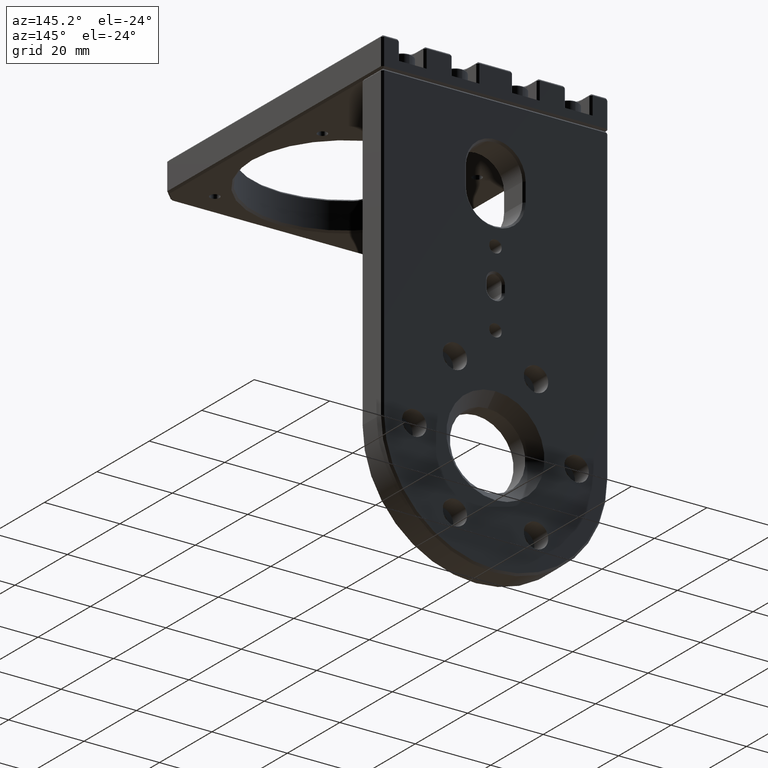
[diagram: clean part render]
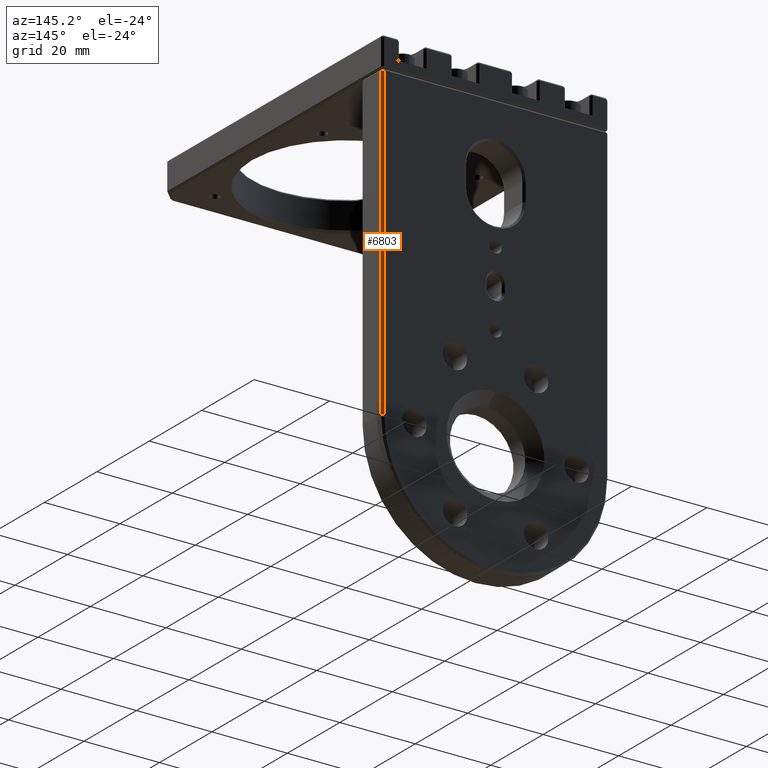
[diagram: same view with one face highlighted and labeled with its STEP entity id]
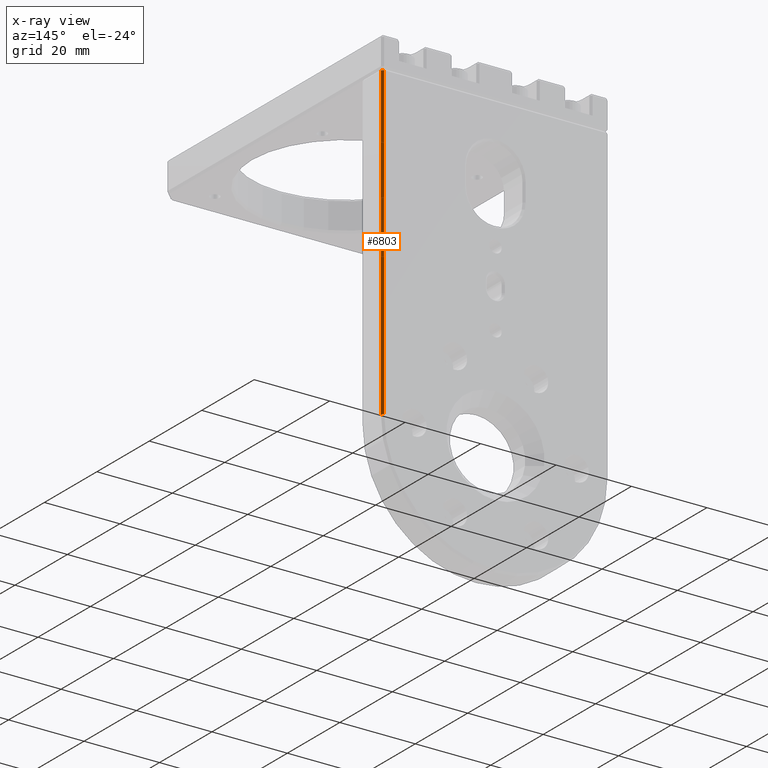
[diagram: x-ray of the same camera — body ghosted, the highlighted face saturated]
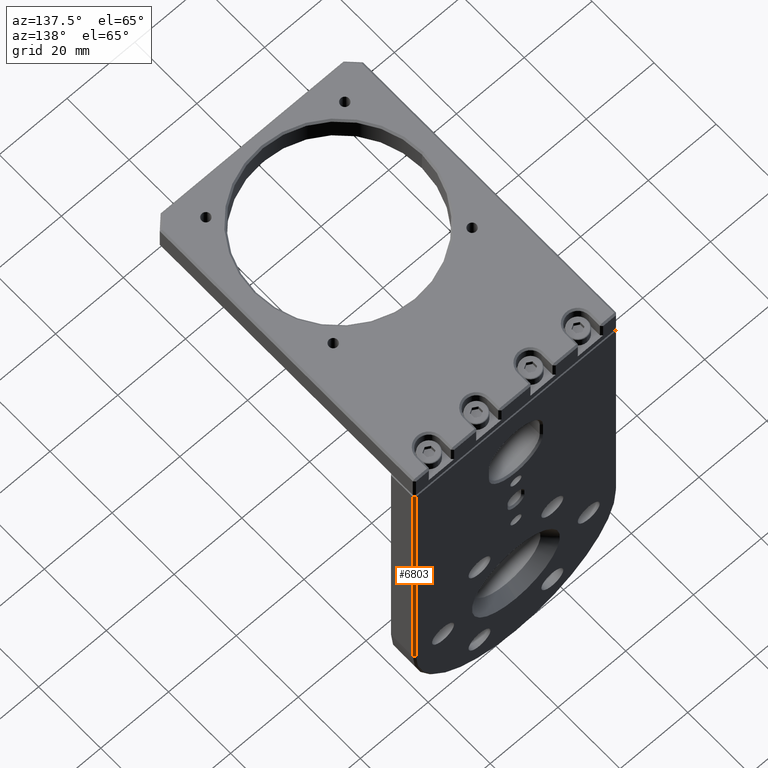
[diagram: same view with one face highlighted and labeled with its STEP entity id]
A machine part, auxiliary view. The second image highlights one B-rep face of the part: STEP entity #6803.
The next image is the same camera in x-ray: the body ghosted, the highlighted face saturated — about 0% of this face is hidden behind the body in this view.
A second angle (auxiliary view) of the same face is appended — the face is thin or edge-on in the first view.
In plain terms, the highlighted planar face has unit normal (0.7071, 0.7071, -0).
Its self-contained STEP definition (entity closure, byte-faithful):
#111 = CARTESIAN_POINT ( 'NONE',  ( 164.6860777088449765, 141.2181840001566684, 103.4864618752668690 ) ) ;
#644 = ORIENTED_EDGE ( 'NONE', *, *, #6061, .T. ) ;
#692 = DIRECTION ( 'NONE',  ( 1.047444401652940007E-14, 0.0000000000000000000, 1.000000000000000000 ) ) ;
#825 = VECTOR ( 'NONE', #692, 1000.000000000000000 ) ;
#1337 = LINE ( 'NONE', #3219, #825 ) ;
#1618 = VERTEX_POINT ( 'NONE', #6688 ) ;
#1717 = ORIENTED_EDGE ( 'NONE', *, *, #7123, .F. ) ;
#1775 = EDGE_CURVE ( 'NONE', #2461, #4824, #1337, .T. ) ;
#1853 = DIRECTION ( 'NONE',  ( 0.7071067811865500152, -0.7071067811865451302, -7.406550393246823247E-15 ) ) ;
#2172 = VECTOR ( 'NONE', #3164, 1000.000000000000114 ) ;
#2414 = CARTESIAN_POINT ( 'NONE',  ( 164.9360777088458292, 140.9681840001566968, 185.4764618752668923 ) ) ;
#2435 = PLANE ( 'NONE',  #7697 ) ;
#2461 = VERTEX_POINT ( 'NONE', #3898 ) ;
#2662 = EDGE_LOOP ( 'NONE', ( #644, #5202, #5030, #1717 ) ) ;
#3047 = LINE ( 'NONE', #2414, #3409 ) ;
#3164 = DIRECTION ( 'NONE',  ( 0.7071067811865500152, -0.7071067811865451302, -7.536443801682146438E-15 ) ) ;
#3219 = CARTESIAN_POINT ( 'NONE',  ( 165.1860777088458292, 140.7181840001566968, 185.9764618752668923 ) ) ;
#3409 = VECTOR ( 'NONE', #1853, 1000.000000000000114 ) ;
#3723 = LINE ( 'NONE', #111, #2172 ) ;
#3898 = CARTESIAN_POINT ( 'NONE',  ( 165.1860777088449765, 140.7181840001566968, 103.4864618752668690 ) ) ;
#3961 = CARTESIAN_POINT ( 'NONE',  ( 165.1860777088458292, 140.7181840001566968, 185.4764618752668923 ) ) ;
#4075 = VERTEX_POINT ( 'NONE', #4800 ) ;
#4624 = EDGE_CURVE ( 'NONE', #4075, #2461, #3723, .T. ) ;
#4800 = CARTESIAN_POINT ( 'NONE',  ( 164.6860777088449765, 141.2181840001566684, 103.4864618752668690 ) ) ;
#4824 = VERTEX_POINT ( 'NONE', #3961 ) ;
#5030 = ORIENTED_EDGE ( 'NONE', *, *, #4624, .F. ) ;
#5202 = ORIENTED_EDGE ( 'NONE', *, *, #1775, .F. ) ;
#5488 = DIRECTION ( 'NONE',  ( -1.047444401652940007E-14, -0.0000000000000000000, -1.000000000000000000 ) ) ;
#5989 = LINE ( 'NONE', #7956, #6684 ) ;
#6054 = DIRECTION ( 'NONE',  ( 0.7071067811865451302, 0.7071067811865500152, -7.406550393246771182E-15 ) ) ;
#6061 = EDGE_CURVE ( 'NONE', #1618, #4824, #3047, .T. ) ;
#6172 = FACE_OUTER_BOUND ( 'NONE', #2662, .T. ) ;
#6684 = VECTOR ( 'NONE', #7355, 1000.000000000000000 ) ;
#6688 = CARTESIAN_POINT ( 'NONE',  ( 164.6860777088458292, 141.2181840001566684, 185.4764618752668923 ) ) ;
#6740 = CARTESIAN_POINT ( 'NONE',  ( 165.1860777088458292, 140.7181840001566968, 185.9764618752668923 ) ) ;
#6803 = ADVANCED_FACE ( 'NONE', ( #6172 ), #2435, .T. ) ;
#7123 = EDGE_CURVE ( 'NONE', #1618, #4075, #5989, .T. ) ;
#7355 = DIRECTION ( 'NONE',  ( -1.047444401652940007E-14, -0.0000000000000000000, -1.000000000000000000 ) ) ;
#7697 = AXIS2_PLACEMENT_3D ( 'NONE', #6740, #6054, #5488 ) ;
#7956 = CARTESIAN_POINT ( 'NONE',  ( 164.6860777088449765, 141.2181840001566684, 103.4864618752668690 ) ) ;